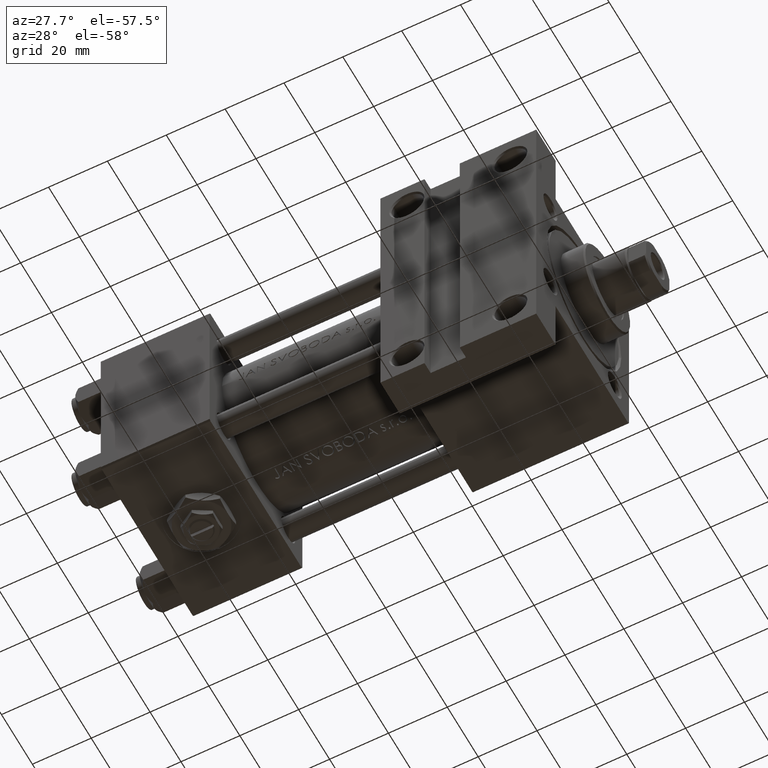
[diagram: clean part render]
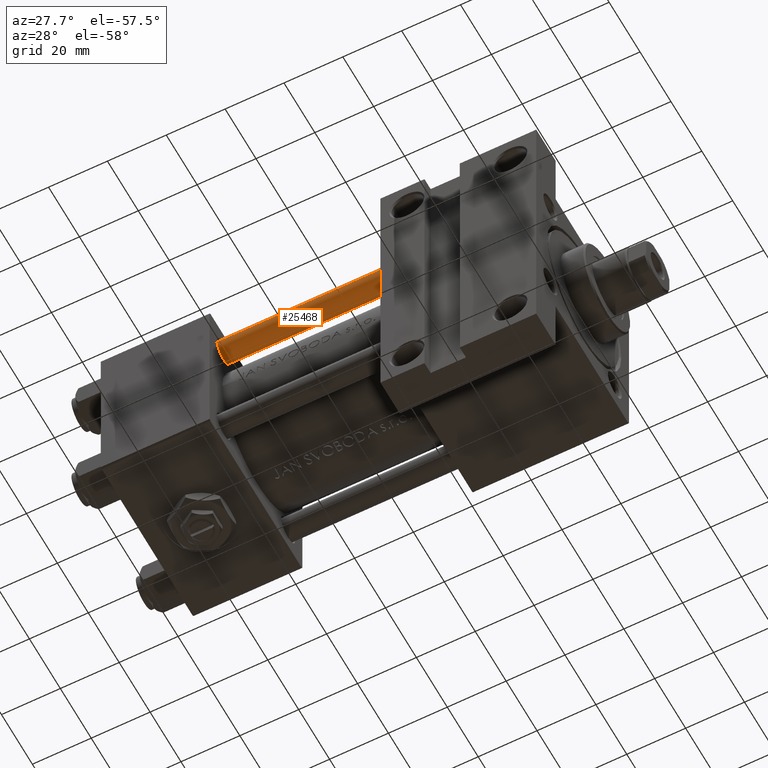
[diagram: same view with one face highlighted and labeled with its STEP entity id]
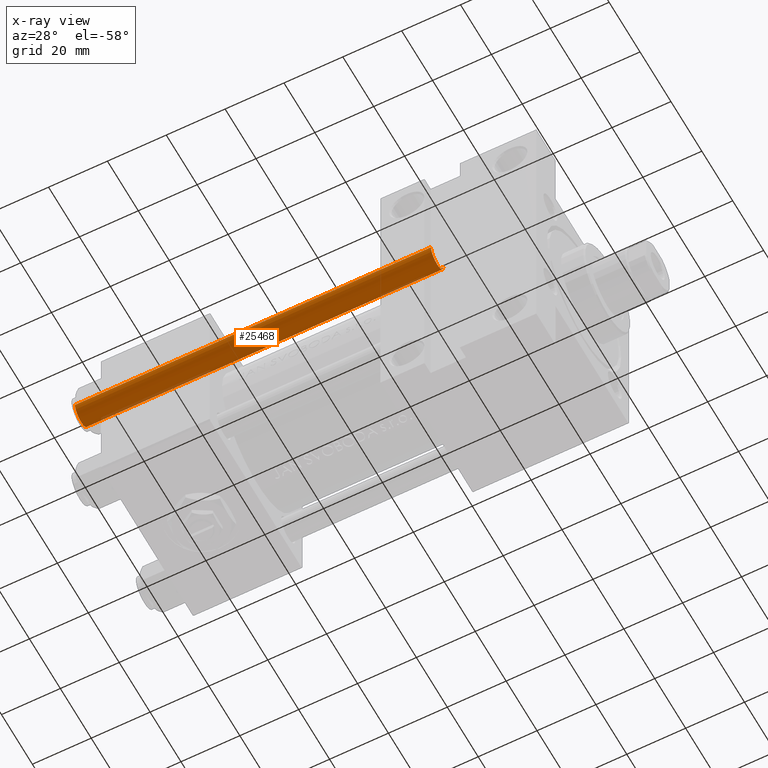
[diagram: x-ray of the same camera — body ghosted, the highlighted face saturated]
A machine part, auxiliary view. The second image highlights one B-rep face of the part: STEP entity #25468.
The next image is the same camera in x-ray: the body ghosted, the highlighted face saturated — about 4% of this face is hidden behind the body in this view.
In plain terms, the highlighted cylindrical surface (edge-blend (fillet) strip) has radius 4 mm, axis along (-1, 0, 0).
Its self-contained STEP definition (entity closure, byte-faithful):
#2921 = VERTEX_POINT ( 'NONE', #44225 ) ;
#3442 = DIRECTION ( 'NONE',  ( -0.000000000000000000, -0.000000000000000000, -1.000000000000000000 ) ) ;
#6001 = CIRCLE ( 'NONE', #28826, 4.000000000000000000 ) ;
#6420 = DIRECTION ( 'NONE',  ( -0.000000000000000000, -0.000000000000000000, 1.000000000000000000 ) ) ;
#6633 = LINE ( 'NONE', #41058, #43442 ) ;
#6792 = LINE ( 'NONE', #10858, #14067 ) ;
#9345 = AXIS2_PLACEMENT_3D ( 'NONE', #22640, #43202, #39138 ) ;
#9410 = DIRECTION ( 'NONE',  ( -0.000000000000000000, -0.000000000000000000, -1.000000000000000000 ) ) ;
#10858 = CARTESIAN_POINT ( 'NONE',  ( -4.000000000000000000, 0.000000000000000000, 122.0000000000000000 ) ) ;
#13231 = ORIENTED_EDGE ( 'NONE', *, *, #39852, .F. ) ;
#14067 = VECTOR ( 'NONE', #3442, 1000.000000000000000 ) ;
#17305 = EDGE_LOOP ( 'NONE', ( #43581, #38249, #49870, #13231 ) ) ;
#17692 = EDGE_CURVE ( 'NONE', #34747, #35413, #6633, .T. ) ;
#22640 = CARTESIAN_POINT ( 'NONE',  ( 0.000000000000000000, 0.000000000000000000, 121.5000000000000426 ) ) ;
#25468 = ADVANCED_FACE ( 'NONE', ( #41019 ), #29039, .T. ) ;
#28826 = AXIS2_PLACEMENT_3D ( 'NONE', #41351, #6420, #37519 ) ;
#29039 = CYLINDRICAL_SURFACE ( 'NONE', #40495, 4.000000000000000000 ) ;
#29080 = DIRECTION ( 'NONE',  ( -0.000000000000000000, -0.000000000000000000, -1.000000000000000000 ) ) ;
#34747 = VERTEX_POINT ( 'NONE', #34777 ) ;
#34777 = CARTESIAN_POINT ( 'NONE',  ( 4.000000000000000000, 4.898587196589411843E-16, 121.5000000000000426 ) ) ;
#35413 = VERTEX_POINT ( 'NONE', #50445 ) ;
#37446 = CARTESIAN_POINT ( 'NONE',  ( 0.000000000000000000, 0.000000000000000000, 122.0000000000000000 ) ) ;
#37519 = DIRECTION ( 'NONE',  ( 1.000000000000000000, 0.000000000000000000, 0.000000000000000000 ) ) ;
#38249 = ORIENTED_EDGE ( 'NONE', *, *, #17692, .T. ) ;
#39138 = DIRECTION ( 'NONE',  ( 1.000000000000000000, 0.000000000000000000, 0.000000000000000000 ) ) ;
#39852 = EDGE_CURVE ( 'NONE', #2921, #49772, #6792, .T. ) ;
#40495 = AXIS2_PLACEMENT_3D ( 'NONE', #37446, #9410, #48148 ) ;
#41019 = FACE_OUTER_BOUND ( 'NONE', #17305, .T. ) ;
#41058 = CARTESIAN_POINT ( 'NONE',  ( 4.000000000000000000, 4.898587196589411843E-16, 122.0000000000000000 ) ) ;
#41351 = CARTESIAN_POINT ( 'NONE',  ( 0.000000000000000000, 0.000000000000000000, 0.5000000000000559552 ) ) ;
#43202 = DIRECTION ( 'NONE',  ( 0.000000000000000000, 0.000000000000000000, -1.000000000000000000 ) ) ;
#43442 = VECTOR ( 'NONE', #29080, 1000.000000000000000 ) ;
#43581 = ORIENTED_EDGE ( 'NONE', *, *, #46969, .T. ) ;
#44225 = CARTESIAN_POINT ( 'NONE',  ( -4.000000000000000000, 0.000000000000000000, 121.5000000000000426 ) ) ;
#44313 = EDGE_CURVE ( 'NONE', #35413, #49772, #6001, .T. ) ;
#45987 = CIRCLE ( 'NONE', #9345, 4.000000000000000000 ) ;
#46423 = CARTESIAN_POINT ( 'NONE',  ( -4.000000000000000000, 0.000000000000000000, 0.5000000000000559552 ) ) ;
#46969 = EDGE_CURVE ( 'NONE', #2921, #34747, #45987, .T. ) ;
#48148 = DIRECTION ( 'NONE',  ( -1.000000000000000000, 0.000000000000000000, 0.000000000000000000 ) ) ;
#49772 = VERTEX_POINT ( 'NONE', #46423 ) ;
#49870 = ORIENTED_EDGE ( 'NONE', *, *, #44313, .T. ) ;
#50445 = CARTESIAN_POINT ( 'NONE',  ( 4.000000000000000000, 4.898587196589411843E-16, 0.5000000000000559552 ) ) ;